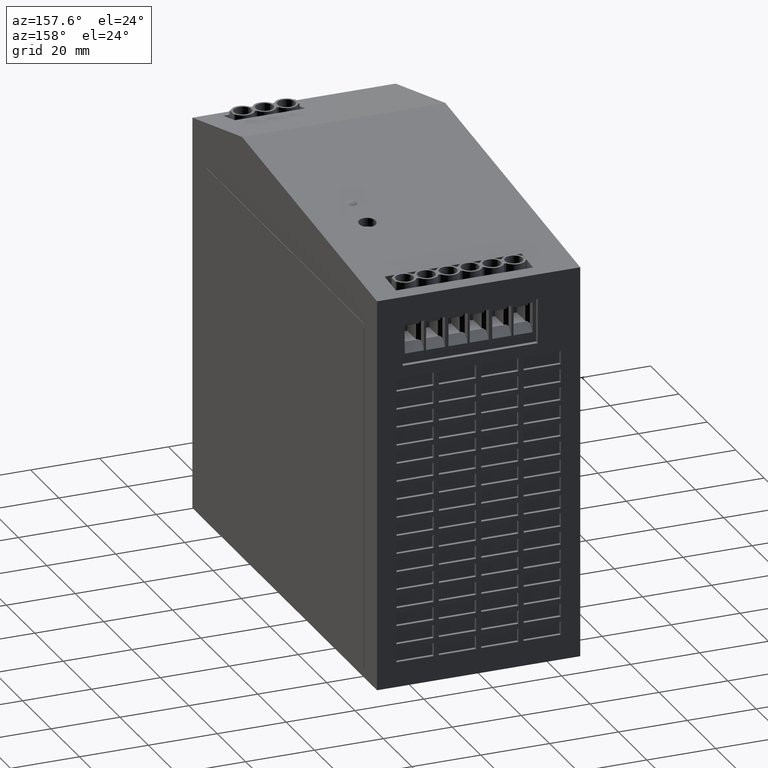
[diagram: clean part render]
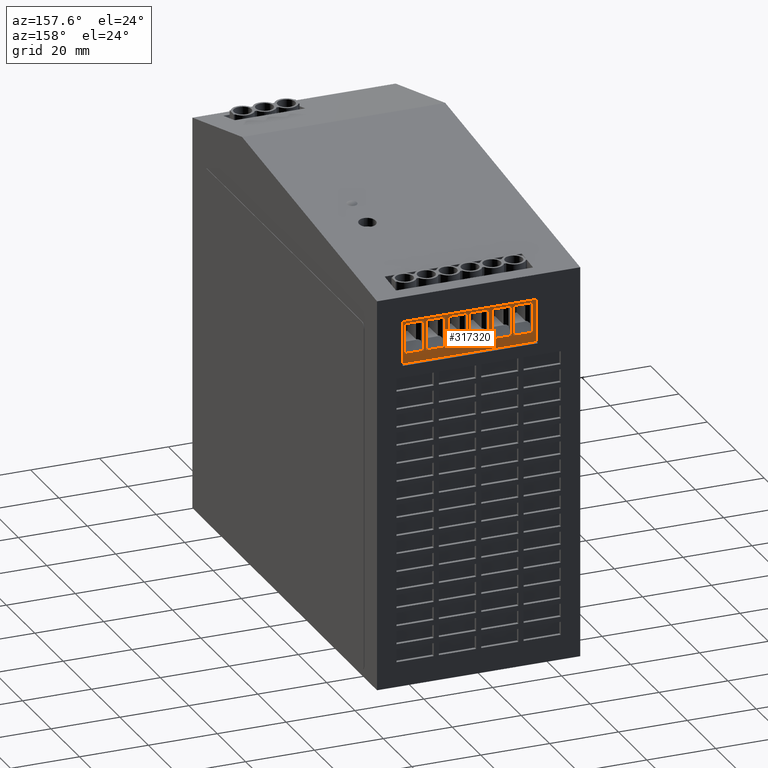
[diagram: same view with one face highlighted and labeled with its STEP entity id]
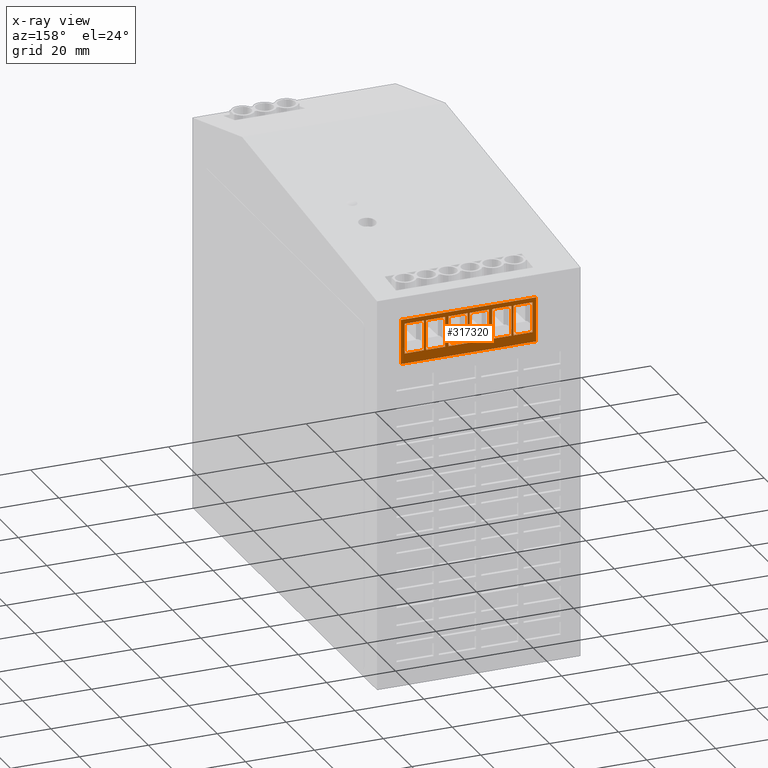
[diagram: x-ray of the same camera — body ghosted, the highlighted face saturated]
A machine part, auxiliary view. The second image highlights one B-rep face of the part: STEP entity #317320.
The next image is the same camera in x-ray: the body ghosted, the highlighted face saturated — about 0% of this face is hidden behind the body in this view.
In plain terms, the highlighted planar face has unit normal (-0, -1, -0).
Its self-contained STEP definition (entity closure, byte-faithful):
#314300=CARTESIAN_POINT('',(51.53,131.849539619843,102.294430197876));
#314310=VERTEX_POINT('',#314300);
#314340=CARTESIAN_POINT('',(2.15033903736798E-25,131.849539619843,
102.294430197876));
#314350=DIRECTION('',(1.,0.,0.));
#314360=VECTOR('',#314350,1.);
#314370=LINE('',#314340,#314360);
#314380=CARTESIAN_POINT('',(12.33,131.849539619843,102.294430197876));
#314390=VERTEX_POINT('',#314380);
#314400=EDGE_CURVE('',#314390,#314310,#314370,.T.);
#314610=CARTESIAN_POINT('',(51.53,131.849539619843,115.244430197876));
#314620=VERTEX_POINT('',#314610);
#314650=CARTESIAN_POINT('',(51.53,131.849539619843,2.06501482580279E-12)
);
#314660=DIRECTION('',(0.,0.,-1.));
#314670=VECTOR('',#314660,1.);
#314680=LINE('',#314650,#314670);
#314690=EDGE_CURVE('',#314620,#314310,#314680,.T.);
#314850=CARTESIAN_POINT('',(12.33,131.849539619843,115.244430197876));
#314860=VERTEX_POINT('',#314850);
#314890=CARTESIAN_POINT('',(2.15033903736798E-25,131.849539619843,
115.244430197876));
#314900=DIRECTION('',(-1.,0.,0.));
#314910=VECTOR('',#314900,1.);
#314920=LINE('',#314890,#314910);
#314930=EDGE_CURVE('',#314620,#314860,#314920,.T.);
#315060=CARTESIAN_POINT('',(12.33,131.849539619843,2.06501482580279E-12)
);
#315070=DIRECTION('',(0.,0.,-1.));
#315080=VECTOR('',#315070,1.);
#315090=LINE('',#315060,#315080);
#315100=EDGE_CURVE('',#314860,#314390,#315090,.T.);
#315170=CARTESIAN_POINT('',(11.34685,131.849539619843,101.967530197876))
;
#315180=DIRECTION('',(-0.,-1.,-0.));
#315190=DIRECTION('',(-1.,0.,0.));
#315200=AXIS2_PLACEMENT_3D('',#315170,#315180,#315190);
#315210=PLANE('',#315200);
#315220=ORIENTED_EDGE('',*,*,#314690,.T.);
#315230=ORIENTED_EDGE('',*,*,#314930,.F.);
#315240=ORIENTED_EDGE('',*,*,#315100,.F.);
#315250=ORIENTED_EDGE('',*,*,#314400,.F.);
#315260=EDGE_LOOP('',(#315250,#315240,#315230,#315220));
#315270=FACE_OUTER_BOUND('',#315260,.T.);
#315280=CARTESIAN_POINT('',(2.15033903736798E-25,131.849539619843,
105.194430197867));
#315290=DIRECTION('',(1.,0.,0.));
#315300=VECTOR('',#315290,1.);
#315310=LINE('',#315280,#315300);
#315320=CARTESIAN_POINT('',(13.33,131.849539619843,105.194430197867));
#315330=VERTEX_POINT('',#315320);
#315340=CARTESIAN_POINT('',(18.88,131.849539619843,105.194430197867));
#315350=VERTEX_POINT('',#315340);
#315360=EDGE_CURVE('',#315330,#315350,#315310,.T.);
#315370=ORIENTED_EDGE('',*,*,#315360,.T.);
#315380=CARTESIAN_POINT('',(13.33,131.849539619843,2.06501482580279E-12)
);
#315390=DIRECTION('',(0.,0.,-1.));
#315400=VECTOR('',#315390,1.);
#315410=LINE('',#315380,#315400);
#315420=CARTESIAN_POINT('',(13.33,131.849539619843,113.944430197867));
#315430=VERTEX_POINT('',#315420);
#315440=EDGE_CURVE('',#315430,#315330,#315410,.T.);
#315450=ORIENTED_EDGE('',*,*,#315440,.T.);
#315460=CARTESIAN_POINT('',(2.15033903736798E-25,131.849539619843,
113.944430197867));
#315470=DIRECTION('',(-1.,0.,0.));
#315480=VECTOR('',#315470,1.);
#315490=LINE('',#315460,#315480);
#315500=CARTESIAN_POINT('',(18.88,131.849539619843,113.944430197867));
#315510=VERTEX_POINT('',#315500);
#315520=EDGE_CURVE('',#315510,#315430,#315490,.T.);
#315530=ORIENTED_EDGE('',*,*,#315520,.T.);
#315540=CARTESIAN_POINT('',(18.88,131.849539619843,2.06501482580279E-12)
);
#315550=DIRECTION('',(0.,0.,1.));
#315560=VECTOR('',#315550,1.);
#315570=LINE('',#315540,#315560);
#315580=EDGE_CURVE('',#315350,#315510,#315570,.T.);
#315590=ORIENTED_EDGE('',*,*,#315580,.T.);
#315600=EDGE_LOOP('',(#315590,#315530,#315450,#315370));
#315610=FACE_BOUND('',#315600,.T.);
#315620=CARTESIAN_POINT('',(2.15033903736798E-25,131.849539619843,
105.194430197867));
#315630=DIRECTION('',(-1.,0.,0.));
#315640=VECTOR('',#315630,1.);
#315650=LINE('',#315620,#315640);
#315660=CARTESIAN_POINT('',(25.03,131.849539619843,105.194430197867));
#315670=VERTEX_POINT('',#315660);
#315680=CARTESIAN_POINT('',(19.48,131.849539619843,105.194430197867));
#315690=VERTEX_POINT('',#315680);
#315700=EDGE_CURVE('',#315670,#315690,#315650,.T.);
#315710=ORIENTED_EDGE('',*,*,#315700,.F.);
#315720=CARTESIAN_POINT('',(19.48,131.849539619843,2.06501482580279E-12)
);
#315730=DIRECTION('',(0.,0.,-1.));
#315740=VECTOR('',#315730,1.);
#315750=LINE('',#315720,#315740);
#315760=CARTESIAN_POINT('',(19.48,131.849539619843,113.944430197867));
#315770=VERTEX_POINT('',#315760);
#315780=EDGE_CURVE('',#315770,#315690,#315750,.T.);
#315790=ORIENTED_EDGE('',*,*,#315780,.T.);
#315800=CARTESIAN_POINT('',(2.15033903736798E-25,131.849539619843,
113.944430197867));
#315810=DIRECTION('',(1.,0.,0.));
#315820=VECTOR('',#315810,1.);
#315830=LINE('',#315800,#315820);
#315840=CARTESIAN_POINT('',(25.03,131.849539619843,113.944430197867));
#315850=VERTEX_POINT('',#315840);
#315860=EDGE_CURVE('',#315770,#315850,#315830,.T.);
#315870=ORIENTED_EDGE('',*,*,#315860,.F.);
#315880=CARTESIAN_POINT('',(25.03,131.849539619843,2.06501482580279E-12)
);
#315890=DIRECTION('',(0.,0.,-1.));
#315900=VECTOR('',#315890,1.);
#315910=LINE('',#315880,#315900);
#315920=EDGE_CURVE('',#315850,#315670,#315910,.T.);
#315930=ORIENTED_EDGE('',*,*,#315920,.F.);
#315940=EDGE_LOOP('',(#315930,#315870,#315790,#315710));
#315950=FACE_BOUND('',#315940,.T.);
#315960=CARTESIAN_POINT('',(2.15033903736798E-25,131.849539619843,
105.194430197867));
#315970=DIRECTION('',(1.,0.,0.));
#315980=VECTOR('',#315970,1.);
#315990=LINE('',#315960,#315980);
#316000=CARTESIAN_POINT('',(38.73,131.849539619843,105.194430197867));
#316010=VERTEX_POINT('',#316000);
#316020=CARTESIAN_POINT('',(44.28,131.849539619843,105.194430197867));
#316030=VERTEX_POINT('',#316020);
#316040=EDGE_CURVE('',#316010,#316030,#315990,.T.);
#316050=ORIENTED_EDGE('',*,*,#316040,.T.);
#316060=CARTESIAN_POINT('',(38.73,131.849539619843,2.06501482580279E-12)
);
#316070=DIRECTION('',(0.,0.,-1.));
#316080=VECTOR('',#316070,1.);
#316090=LINE('',#316060,#316080);
#316100=CARTESIAN_POINT('',(38.73,131.849539619843,113.944430197867));
#316110=VERTEX_POINT('',#316100);
#316120=EDGE_CURVE('',#316110,#316010,#316090,.T.);
#316130=ORIENTED_EDGE('',*,*,#316120,.T.);
#316140=CARTESIAN_POINT('',(2.15033903736798E-25,131.849539619843,
113.944430197867));
#316150=DIRECTION('',(-1.,0.,0.));
#316160=VECTOR('',#316150,1.);
#316170=LINE('',#316140,#316160);
#316180=CARTESIAN_POINT('',(44.28,131.849539619843,113.944430197867));
#316190=VERTEX_POINT('',#316180);
#316200=EDGE_CURVE('',#316190,#316110,#316170,.T.);
#316210=ORIENTED_EDGE('',*,*,#316200,.T.);
#316220=CARTESIAN_POINT('',(44.28,131.849539619843,2.06501482580279E-12)
);
#316230=DIRECTION('',(0.,0.,1.));
#316240=VECTOR('',#316230,1.);
#316250=LINE('',#316220,#316240);
#316260=EDGE_CURVE('',#316030,#316190,#316250,.T.);
#316270=ORIENTED_EDGE('',*,*,#316260,.T.);
#316280=EDGE_LOOP('',(#316270,#316210,#316130,#316050));
#316290=FACE_BOUND('',#316280,.T.);
#316300=CARTESIAN_POINT('',(2.15033903736798E-25,131.849539619843,
105.194430197867));
#316310=DIRECTION('',(-1.,0.,0.));
#316320=VECTOR('',#316310,1.);
#316330=LINE('',#316300,#316320);
#316340=CARTESIAN_POINT('',(50.43,131.849539619843,105.194430197867));
#316350=VERTEX_POINT('',#316340);
#316360=CARTESIAN_POINT('',(44.88,131.849539619843,105.194430197867));
#316370=VERTEX_POINT('',#316360);
#316380=EDGE_CURVE('',#316350,#316370,#316330,.T.);
#316390=ORIENTED_EDGE('',*,*,#316380,.F.);
#316400=CARTESIAN_POINT('',(44.88,131.849539619843,2.06501482580279E-12)
);
#316410=DIRECTION('',(0.,0.,-1.));
#316420=VECTOR('',#316410,1.);
#316430=LINE('',#316400,#316420);
#316440=CARTESIAN_POINT('',(44.88,131.849539619843,113.944430197867));
#316450=VERTEX_POINT('',#316440);
#316460=EDGE_CURVE('',#316450,#316370,#316430,.T.);
#316470=ORIENTED_EDGE('',*,*,#316460,.T.);
#316480=CARTESIAN_POINT('',(2.15033903736798E-25,131.849539619843,
113.944430197867));
#316490=DIRECTION('',(1.,0.,0.));
#316500=VECTOR('',#316490,1.);
#316510=LINE('',#316480,#316500);
#316520=CARTESIAN_POINT('',(50.43,131.849539619843,113.944430197867));
#316530=VERTEX_POINT('',#316520);
#316540=EDGE_CURVE('',#316450,#316530,#316510,.T.);
#316550=ORIENTED_EDGE('',*,*,#316540,.F.);
#316560=CARTESIAN_POINT('',(50.43,131.849539619843,2.06501482580279E-12)
);
#316570=DIRECTION('',(0.,0.,-1.));
#316580=VECTOR('',#316570,1.);
#316590=LINE('',#316560,#316580);
#316600=EDGE_CURVE('',#316530,#316350,#316590,.T.);
#316610=ORIENTED_EDGE('',*,*,#316600,.F.);
#316620=EDGE_LOOP('',(#316610,#316550,#316470,#316390));
#316630=FACE_BOUND('',#316620,.T.);
#316640=CARTESIAN_POINT('',(2.15033903736798E-25,131.849539619843,
105.194430197867));
#316650=DIRECTION('',(1.,0.,0.));
#316660=VECTOR('',#316650,1.);
#316670=LINE('',#316640,#316660);
#316680=CARTESIAN_POINT('',(26.03,131.849539619843,105.194430197867));
#316690=VERTEX_POINT('',#316680);
#316700=CARTESIAN_POINT('',(31.58,131.849539619843,105.194430197867));
#316710=VERTEX_POINT('',#316700);
#316720=EDGE_CURVE('',#316690,#316710,#316670,.T.);
#316730=ORIENTED_EDGE('',*,*,#316720,.T.);
#316740=CARTESIAN_POINT('',(26.03,131.849539619843,2.06501482580279E-12)
);
#316750=DIRECTION('',(0.,0.,-1.));
#316760=VECTOR('',#316750,1.);
#316770=LINE('',#316740,#316760);
#316780=CARTESIAN_POINT('',(26.03,131.849539619843,113.944430197867));
#316790=VERTEX_POINT('',#316780);
#316800=EDGE_CURVE('',#316790,#316690,#316770,.T.);
#316810=ORIENTED_EDGE('',*,*,#316800,.T.);
#316820=CARTESIAN_POINT('',(2.15033903736798E-25,131.849539619843,
113.944430197867));
#316830=DIRECTION('',(-1.,0.,0.));
#316840=VECTOR('',#316830,1.);
#316850=LINE('',#316820,#316840);
#316860=CARTESIAN_POINT('',(31.58,131.849539619843,113.944430197867));
#316870=VERTEX_POINT('',#316860);
#316880=EDGE_CURVE('',#316870,#316790,#316850,.T.);
#316890=ORIENTED_EDGE('',*,*,#316880,.T.);
#316900=CARTESIAN_POINT('',(31.58,131.849539619843,2.06501482580279E-12)
);
#316910=DIRECTION('',(0.,0.,1.));
#316920=VECTOR('',#316910,1.);
#316930=LINE('',#316900,#316920);
#316940=EDGE_CURVE('',#316710,#316870,#316930,.T.);
#316950=ORIENTED_EDGE('',*,*,#316940,.T.);
#316960=EDGE_LOOP('',(#316950,#316890,#316810,#316730));
#316970=FACE_BOUND('',#316960,.T.);
#316980=CARTESIAN_POINT('',(2.15033903736798E-25,131.849539619843,
105.194430197867));
#316990=DIRECTION('',(-1.,0.,0.));
#317000=VECTOR('',#316990,1.);
#317010=LINE('',#316980,#317000);
#317020=CARTESIAN_POINT('',(37.73,131.849539619843,105.194430197867));
#317030=VERTEX_POINT('',#317020);
#317040=CARTESIAN_POINT('',(32.18,131.849539619843,105.194430197867));
#317050=VERTEX_POINT('',#317040);
#317060=EDGE_CURVE('',#317030,#317050,#317010,.T.);
#317070=ORIENTED_EDGE('',*,*,#317060,.F.);
#317080=CARTESIAN_POINT('',(32.18,131.849539619843,2.06501482580279E-12)
);
#317090=DIRECTION('',(0.,0.,-1.));
#317100=VECTOR('',#317090,1.);
#317110=LINE('',#317080,#317100);
#317120=CARTESIAN_POINT('',(32.18,131.849539619843,113.944430197867));
#317130=VERTEX_POINT('',#317120);
#317140=EDGE_CURVE('',#317130,#317050,#317110,.T.);
#317150=ORIENTED_EDGE('',*,*,#317140,.T.);
#317160=CARTESIAN_POINT('',(2.15033903736798E-25,131.849539619843,
113.944430197867));
#317170=DIRECTION('',(1.,0.,0.));
#317180=VECTOR('',#317170,1.);
#317190=LINE('',#317160,#317180);
#317200=CARTESIAN_POINT('',(37.73,131.849539619843,113.944430197867));
#317210=VERTEX_POINT('',#317200);
#317220=EDGE_CURVE('',#317130,#317210,#317190,.T.);
#317230=ORIENTED_EDGE('',*,*,#317220,.F.);
#317240=CARTESIAN_POINT('',(37.73,131.849539619843,2.06501482580279E-12)
);
#317250=DIRECTION('',(0.,0.,-1.));
#317260=VECTOR('',#317250,1.);
#317270=LINE('',#317240,#317260);
#317280=EDGE_CURVE('',#317210,#317030,#317270,.T.);
#317290=ORIENTED_EDGE('',*,*,#317280,.F.);
#317300=EDGE_LOOP('',(#317290,#317230,#317150,#317070));
#317310=FACE_BOUND('',#317300,.T.);
#317320=ADVANCED_FACE('',(#315270,#315610,#315950,#316290,#316630,
#316970,#317310),#315210,.F.);